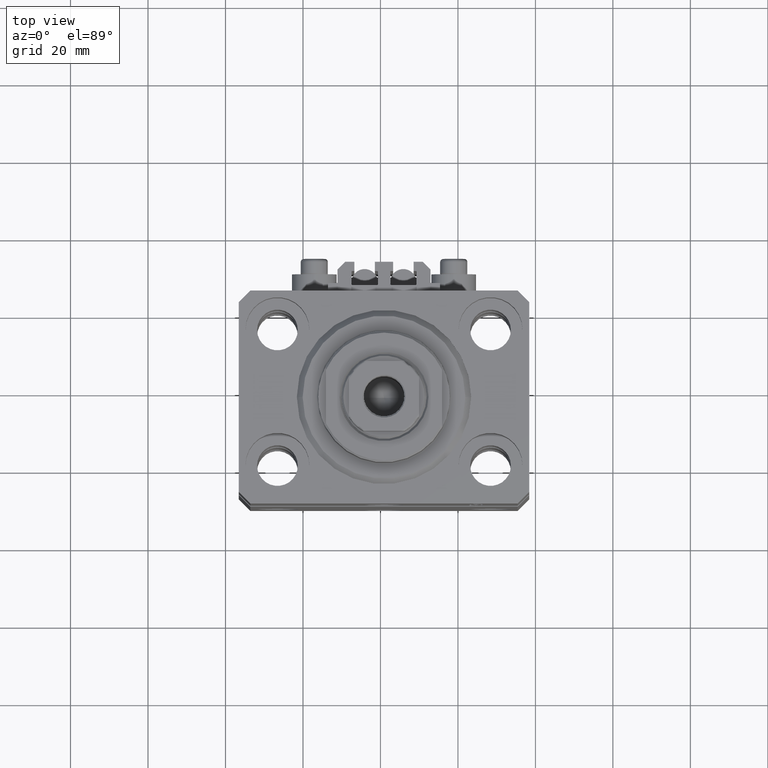
[diagram: clean part render]
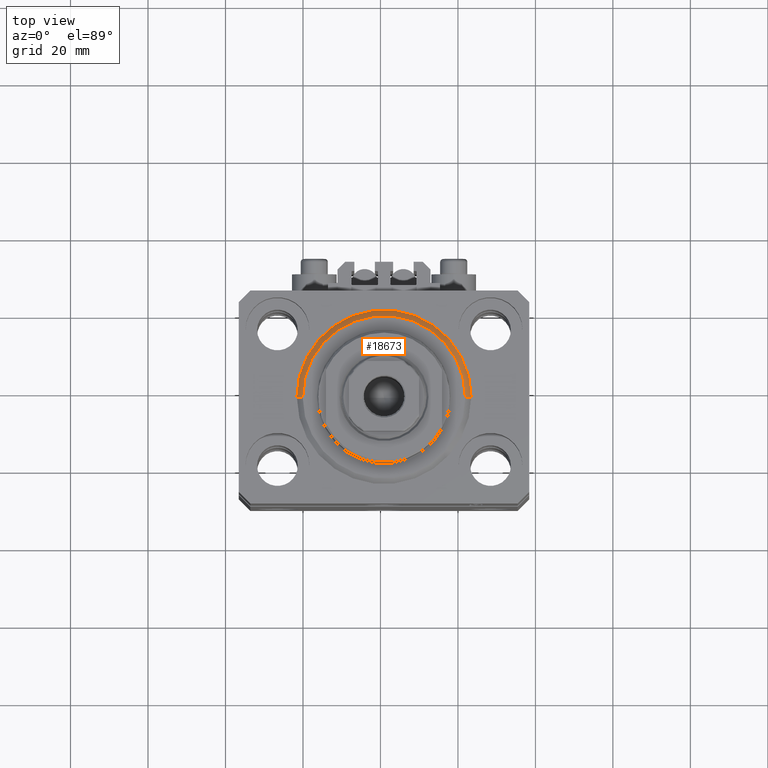
[diagram: same view with one face highlighted and labeled with its STEP entity id]
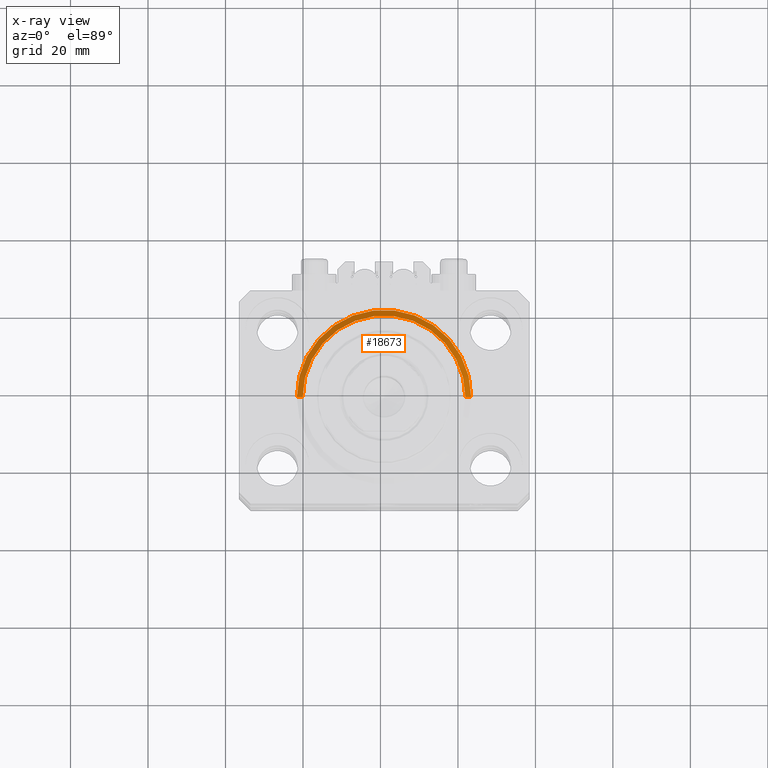
[diagram: x-ray of the same camera — body ghosted, the highlighted face saturated]
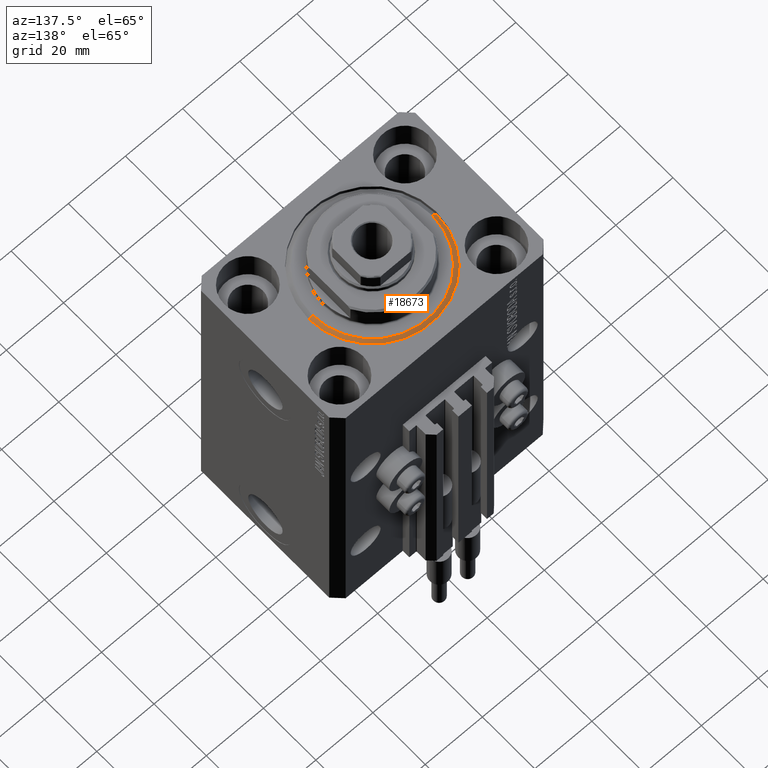
[diagram: same view with one face highlighted and labeled with its STEP entity id]
A machine part, top view. The second image highlights one B-rep face of the part: STEP entity #18673.
The next image is the same camera in x-ray: the body ghosted, the highlighted face saturated — about 0% of this face is hidden behind the body in this view.
A second angle (auxiliary view) of the same face is appended — the face is thin or edge-on in the first view.
In plain terms, the highlighted conical surface has half-angle 45 deg.
Its self-contained STEP definition (entity closure, byte-faithful):
#367 = DIRECTION ( 'NONE',  ( 1.000000000000000000, 0.000000000000000000, 0.000000000000000000 ) ) ;
#859 = FACE_OUTER_BOUND ( 'NONE', #20100, .T. ) ;
#2339 = DIRECTION ( 'NONE',  ( 1.000000000000000000, 0.000000000000000000, 0.000000000000000000 ) ) ;
#4292 = DIRECTION ( 'NONE',  ( -0.000000000000000000, -0.000000000000000000, 1.000000000000000000 ) ) ;
#4843 = CIRCLE ( 'NONE', #44197, 22.50000000000000355 ) ;
#4985 = CARTESIAN_POINT ( 'NONE',  ( -22.50000000000000355, 2.755455298081545172E-15, 1.500000000000001332 ) ) ;
#5778 = CARTESIAN_POINT ( 'NONE',  ( 0.000000000000000000, 0.000000000000000000, 0.000000000000000000 ) ) ;
#7415 = LINE ( 'NONE', #44860, #10134 ) ;
#10134 = VECTOR ( 'NONE', #22435, 1000.000000000000114 ) ;
#10684 = DIRECTION ( 'NONE',  ( 1.000000000000000000, 0.000000000000000000, 0.000000000000000000 ) ) ;
#10750 = VERTEX_POINT ( 'NONE', #18092 ) ;
#13837 = EDGE_CURVE ( 'NONE', #38576, #45178, #21840, .T. ) ;
#14125 = CARTESIAN_POINT ( 'NONE',  ( 0.000000000000000000, 0.000000000000000000, 1.500000000000001332 ) ) ;
#17101 = DIRECTION ( 'NONE',  ( -0.000000000000000000, -0.000000000000000000, 1.000000000000000000 ) ) ;
#17971 = CONICAL_SURFACE ( 'NONE', #35302, 22.50000000000000355, 0.7853981633974517207 ) ;
#18092 = CARTESIAN_POINT ( 'NONE',  ( -22.50000000000000355, 0.000000000000000000, 1.500000000000001332 ) ) ;
#18673 = ADVANCED_FACE ( 'NONE', ( #859 ), #17971, .T. ) ;
#20100 = EDGE_LOOP ( 'NONE', ( #31460, #40958, #40103, #46116 ) ) ;
#21840 = CIRCLE ( 'NONE', #39951, 20.99999999999998934 ) ;
#21843 = CARTESIAN_POINT ( 'NONE',  ( 22.50000000000000355, 2.755455298081545172E-15, 1.500000000000001332 ) ) ;
#21997 = EDGE_CURVE ( 'NONE', #38576, #10750, #31334, .T. ) ;
#22435 = DIRECTION ( 'NONE',  ( 0.7071067811865500152, 0.000000000000000000, 0.7071067811865451302 ) ) ;
#23261 = CARTESIAN_POINT ( 'NONE',  ( 0.000000000000000000, 0.000000000000000000, 1.500000000000001332 ) ) ;
#25490 = CARTESIAN_POINT ( 'NONE',  ( -20.99999999999998934, 2.663606788145492628E-15, 0.000000000000000000 ) ) ;
#28174 = DIRECTION ( 'NONE',  ( -0.000000000000000000, -0.000000000000000000, -1.000000000000000000 ) ) ;
#29474 = EDGE_CURVE ( 'NONE', #37604, #10750, #4843, .T. ) ;
#31334 = LINE ( 'NONE', #4985, #35400 ) ;
#31460 = ORIENTED_EDGE ( 'NONE', *, *, #13837, .F. ) ;
#35302 = AXIS2_PLACEMENT_3D ( 'NONE', #23261, #4292, #367 ) ;
#35400 = VECTOR ( 'NONE', #41707, 1000.000000000000114 ) ;
#37604 = VERTEX_POINT ( 'NONE', #21843 ) ;
#38576 = VERTEX_POINT ( 'NONE', #25490 ) ;
#39951 = AXIS2_PLACEMENT_3D ( 'NONE', #5778, #28174, #2339 ) ;
#40103 = ORIENTED_EDGE ( 'NONE', *, *, #29474, .F. ) ;
#40330 = CARTESIAN_POINT ( 'NONE',  ( 20.99999999999998934, 0.000000000000000000, 0.000000000000000000 ) ) ;
#40958 = ORIENTED_EDGE ( 'NONE', *, *, #21997, .T. ) ;
#41707 = DIRECTION ( 'NONE',  ( -0.7071067811865500152, 8.659560562354963673E-17, 0.7071067811865451302 ) ) ;
#43503 = EDGE_CURVE ( 'NONE', #45178, #37604, #7415, .T. ) ;
#44197 = AXIS2_PLACEMENT_3D ( 'NONE', #14125, #17101, #10684 ) ;
#44860 = CARTESIAN_POINT ( 'NONE',  ( 22.50000000000000355, 0.000000000000000000, 1.500000000000001332 ) ) ;
#45178 = VERTEX_POINT ( 'NONE', #40330 ) ;
#46116 = ORIENTED_EDGE ( 'NONE', *, *, #43503, .F. ) ;